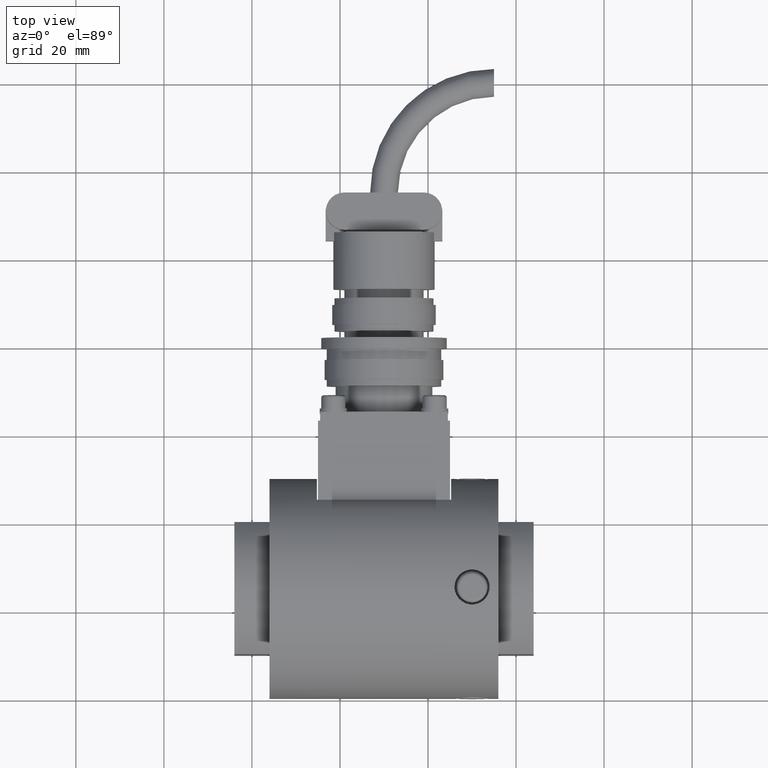
[diagram: clean part render]
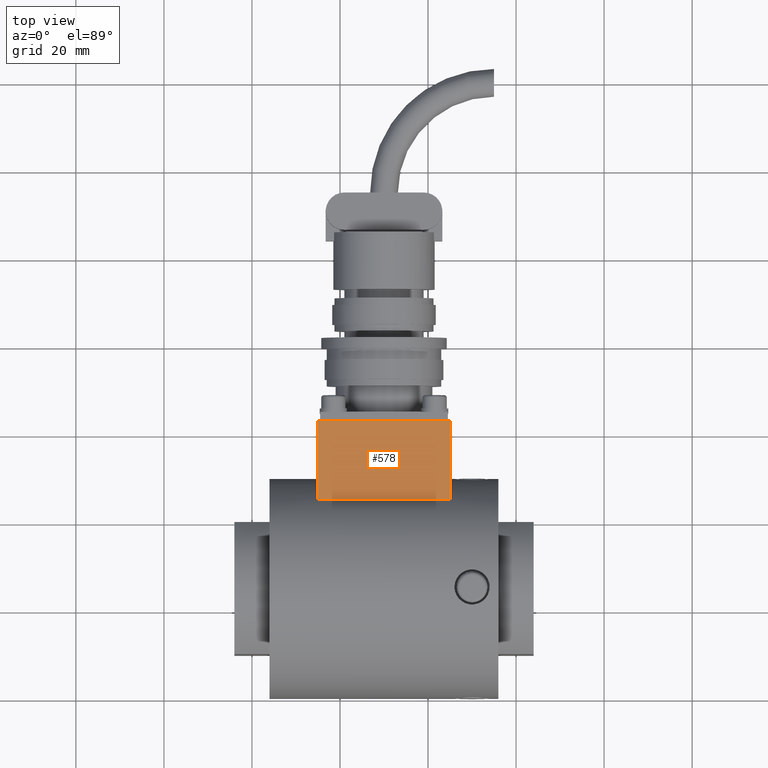
[diagram: same view with one face highlighted and labeled with its STEP entity id]
A machine part, top view. The second image highlights one B-rep face of the part: STEP entity #578.
In plain terms, the highlighted planar face has unit normal (0, 0, 1).
Its self-contained STEP definition (entity closure, byte-faithful):
#522=CARTESIAN_POINT('',(-15.0,15.0,9.0));
#523=VERTEX_POINT('',#522);
#530=CARTESIAN_POINT('',(-15.0,15.0,-9.0));
#531=VERTEX_POINT('',#530);
#532=CARTESIAN_POINT('',(-15.0,15.0,-9.0));
#533=DIRECTION('',(0.0,0.0,1.0));
#534=VECTOR('',#533,18.0);
#535=LINE('',#532,#534);
#536=EDGE_CURVE('',#531,#523,#535,.T.);
#548=CARTESIAN_POINT('',(-15.0,15.0,-9.0));
#549=DIRECTION('',(0.0,1.0,0.0));
#550=DIRECTION('',(0.0,0.0,1.0));
#551=AXIS2_PLACEMENT_3D('',#548,#549,#550);
#552=PLANE('',#551);
#553=CARTESIAN_POINT('',(15.0,15.0,9.0));
#554=VERTEX_POINT('',#553);
#555=CARTESIAN_POINT('',(-15.0,15.0,9.0));
#556=DIRECTION('',(1.0,0.0,0.0));
#557=VECTOR('',#556,30.0);
#558=LINE('',#555,#557);
#559=EDGE_CURVE('',#523,#554,#558,.T.);
#560=ORIENTED_EDGE('',*,*,#559,.T.);
#561=CARTESIAN_POINT('',(15.0,15.0,-9.0));
#562=VERTEX_POINT('',#561);
#563=CARTESIAN_POINT('',(15.0,15.0,-9.0));
#564=DIRECTION('',(0.0,0.0,1.0));
#565=VECTOR('',#564,18.0);
#566=LINE('',#563,#565);
#567=EDGE_CURVE('',#562,#554,#566,.T.);
#568=ORIENTED_EDGE('',*,*,#567,.F.);
#569=CARTESIAN_POINT('',(-15.0,15.0,-9.0));
#570=DIRECTION('',(1.0,0.0,0.0));
#571=VECTOR('',#570,30.0);
#572=LINE('',#569,#571);
#573=EDGE_CURVE('',#531,#562,#572,.T.);
#574=ORIENTED_EDGE('',*,*,#573,.F.);
#575=ORIENTED_EDGE('',*,*,#536,.T.);
#576=EDGE_LOOP('',(#560,#568,#574,#575));
#577=FACE_OUTER_BOUND('',#576,.T.);
#578=ADVANCED_FACE('',(#577),#552,.T.);